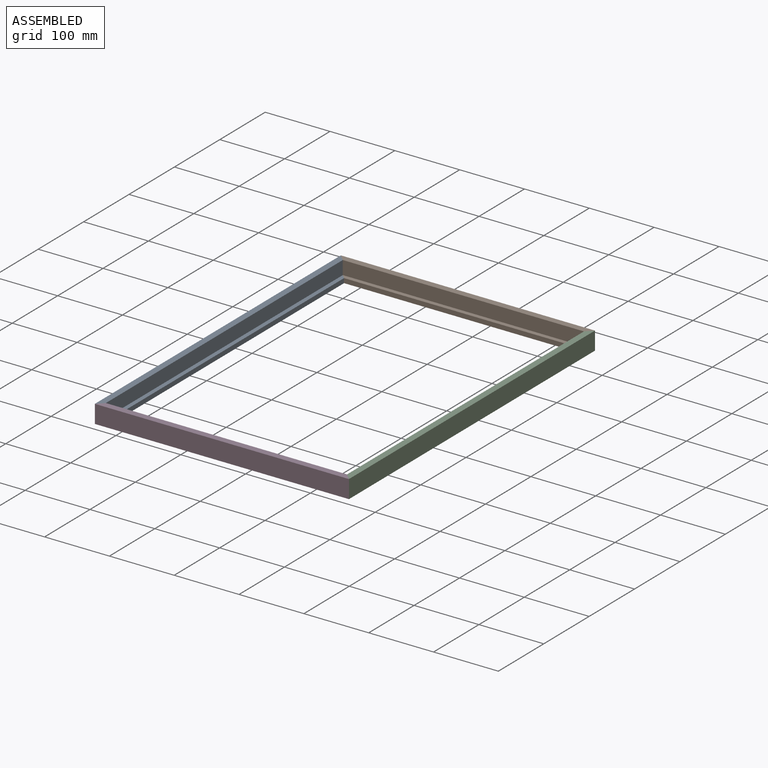
[diagram: assembled view]
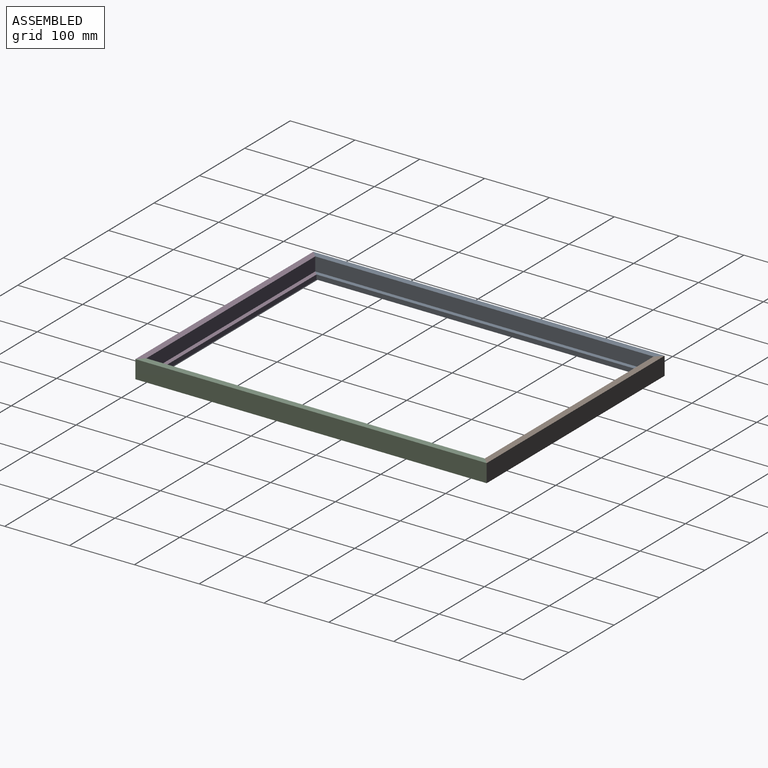
[diagram: assembled view, second angle]
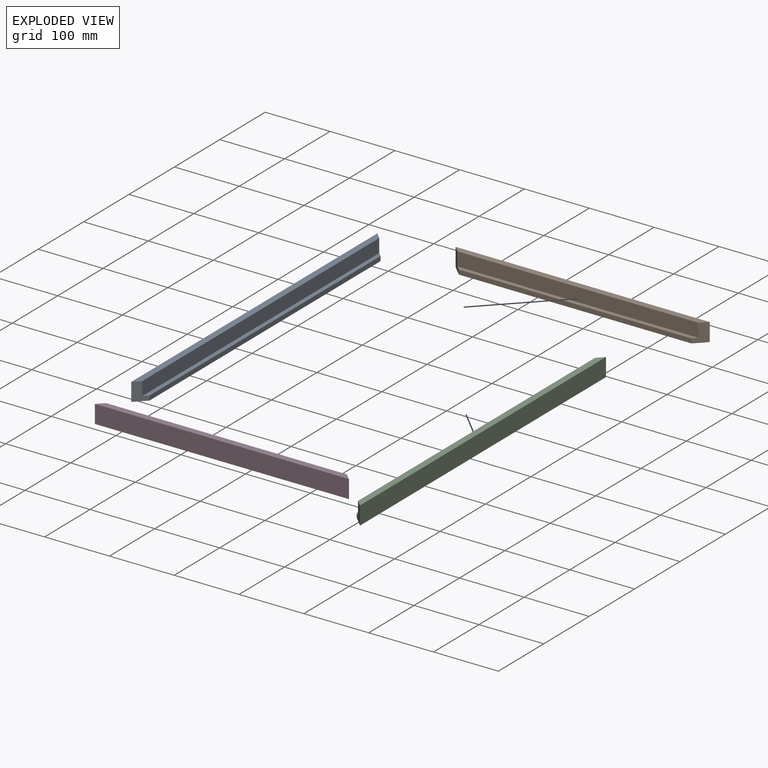
[diagram: exploded view]
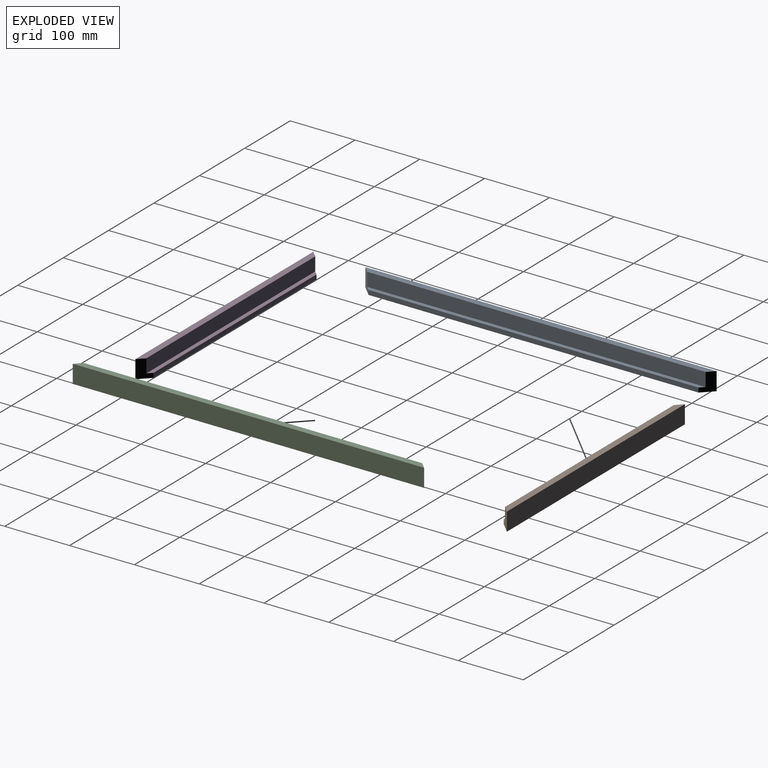
[diagram: exploded view, second angle]
ASSEMBLY  parts=4 mates=4
PART A: 8 faces, bbox 16.5x542x28 mm
  f0: plane 542x16.5mm, normal (0,0,-1), area 8670.8mm2, adj f1,f5,f6,f7
  f1: plane 509x7mm, normal (1,0,0), area 3563mm2, adj f0,f2,f6,f7
  f2: plane 522x6.5mm, normal (0,0,1), area 3350.8mm2, adj f1,f3,f6,f7
  f3: plane 522x21mm, normal (1,0,0), area 10962mm2, adj f2,f4,f6,f7
  f4: plane 542x10mm, normal (0,0,1), area 5320mm2, adj f3,f5,f6,f7
  f5: plane 542x28mm, normal (-1,0,0), area 15176mm2, adj f0,f4,f6,f7
  f6: plane 28x16.5mm, normal (0.71,-0.71,0), area 460.3mm2, adj f0,f1,f2,f3,f4,f5
  f7: plane 28x16.5mm, normal (0.71,0.71,0), area 460.3mm2, adj f0,f1,f2,f3,f4,f5
PART B: 8 faces, bbox 16.5x392x28 mm
  f0: plane 392x16.5mm, normal (0,0,-1), area 6195.8mm2, adj f1,f5,f6,f7
  f1: plane 359x7mm, normal (1,0,0), area 2513mm2, adj f0,f2,f6,f7
  f2: plane 372x6.5mm, normal (0,0,1), area 2375.8mm2, adj f1,f3,f6,f7
  f3: plane 372x21mm, normal (1,0,0), area 7812mm2, adj f2,f4,f6,f7
  f4: plane 392x10mm, normal (0,0,1), area 3820mm2, adj f3,f5,f6,f7
  f5: plane 392x28mm, normal (-1,0,0), area 10976mm2, adj f0,f4,f6,f7
  f6: plane 28x16.5mm, normal (0.71,-0.71,0), area 460.3mm2, adj f0,f1,f2,f3,f4,f5
  f7: plane 28x16.5mm, normal (0.71,0.71,0), area 460.3mm2, adj f0,f1,f2,f3,f4,f5
PART C: same geometry as A
PART D: same geometry as B
PLACE A t=(-129.28,137.34,-105.28)mm fixed
PLACE B rot(axis=(0,0,-1),90deg) t=(262.72,137.34,-105.28)mm
PLACE C rot(axis=(0,0,-1),180deg) t=(262.72,-404.66,-105.28)mm
PLACE D rot(axis=(0,0,1),90deg) t=(-129.28,-404.66,-105.28)mm
MATE planar D.f7 <-> A.f6  axis (-0.71,0.71,0) through (-129.28,-404.66,-91.28)mm
MATE planar C.f6 <-> B.f7  axis (-0.71,0.71,0) through (256.57,131.19,-92.75)mm
MATE fastened B.f6 <-> A.f7  axis (-0.71,-0.71,0) through (-123.12,131.19,-92.75)mm
MATE planar D.f7 <-> A.f6  axis (-0.71,0.71,0) through (-123.12,-398.51,-92.75)mm
